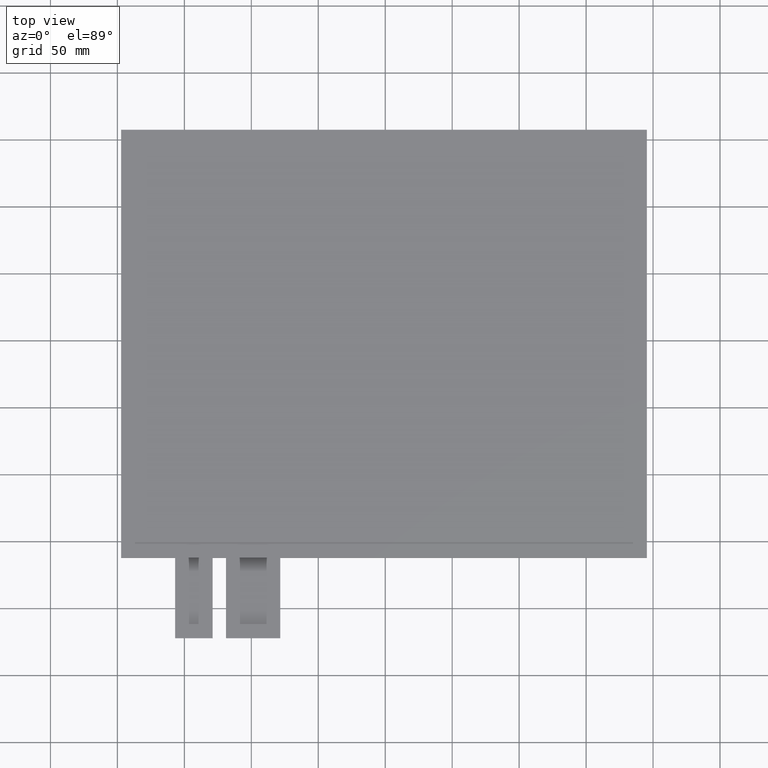
[diagram: clean part render]
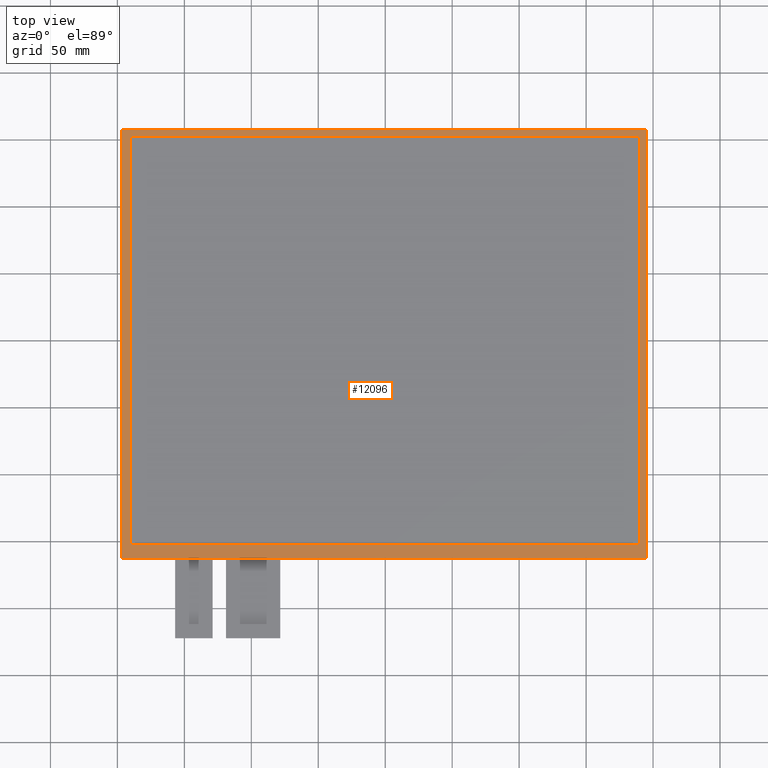
[diagram: same view with one face highlighted and labeled with its STEP entity id]
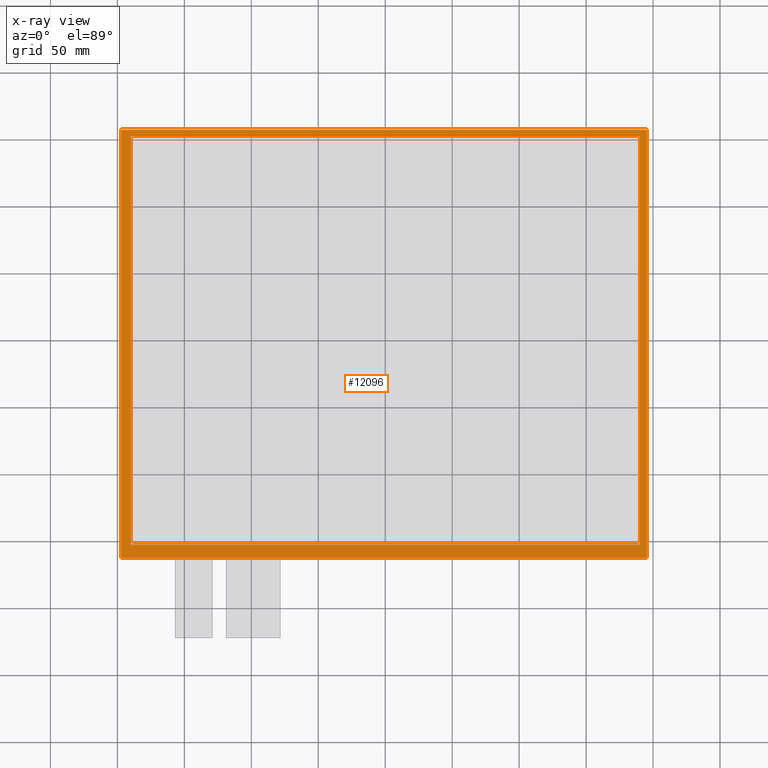
[diagram: x-ray of the same camera — body ghosted, the highlighted face saturated]
A machine part, top view. The second image highlights one B-rep face of the part: STEP entity #12096.
The next image is the same camera in x-ray: the body ghosted, the highlighted face saturated — about 0% of this face is hidden behind the body in this view.
In plain terms, the highlighted planar face has unit normal (0, 0, 1).
Its self-contained STEP definition (entity closure, byte-faithful):
#68=FACE_BOUND('',#1796,.T.);
#638=PLANE('',#12702);
#1216=FACE_OUTER_BOUND('',#1795,.T.);
#1795=EDGE_LOOP('',(#11481,#11482,#11483,#11484));
#1796=EDGE_LOOP('',(#11485,#11486,#11487,#11488));
#3489=LINE('',#18981,#5197);
#3493=LINE('',#18989,#5201);
#3496=LINE('',#18995,#5204);
#3499=LINE('',#19000,#5207);
#3501=LINE('',#19006,#5209);
#3502=LINE('',#19008,#5210);
#3503=LINE('',#19010,#5211);
#3504=LINE('',#19011,#5212);
#5197=VECTOR('',#15545,10.);
#5201=VECTOR('',#15551,10.);
#5204=VECTOR('',#15556,10.);
#5207=VECTOR('',#15561,10.);
#5209=VECTOR('',#15567,10.);
#5210=VECTOR('',#15568,10.);
#5211=VECTOR('',#15569,10.);
#5212=VECTOR('',#15570,10.);
#6357=VERTEX_POINT('',#18979);
#6358=VERTEX_POINT('',#18980);
#6361=VERTEX_POINT('',#18988);
#6363=VERTEX_POINT('',#18994);
#6365=VERTEX_POINT('',#19004);
#6366=VERTEX_POINT('',#19005);
#6367=VERTEX_POINT('',#19007);
#6368=VERTEX_POINT('',#19009);
#8065=EDGE_CURVE('',#6357,#6358,#3489,.T.);
#8069=EDGE_CURVE('',#6361,#6357,#3493,.T.);
#8072=EDGE_CURVE('',#6363,#6361,#3496,.T.);
#8075=EDGE_CURVE('',#6358,#6363,#3499,.T.);
#8077=EDGE_CURVE('',#6365,#6366,#3501,.T.);
#8078=EDGE_CURVE('',#6366,#6367,#3502,.T.);
#8079=EDGE_CURVE('',#6367,#6368,#3503,.T.);
#8080=EDGE_CURVE('',#6368,#6365,#3504,.T.);
#11481=ORIENTED_EDGE('',*,*,#8077,.T.);
#11482=ORIENTED_EDGE('',*,*,#8078,.T.);
#11483=ORIENTED_EDGE('',*,*,#8079,.T.);
#11484=ORIENTED_EDGE('',*,*,#8080,.T.);
#11485=ORIENTED_EDGE('',*,*,#8065,.T.);
#11486=ORIENTED_EDGE('',*,*,#8075,.T.);
#11487=ORIENTED_EDGE('',*,*,#8072,.T.);
#11488=ORIENTED_EDGE('',*,*,#8069,.T.);
#12096=ADVANCED_FACE('',(#1216,#68),#638,.T.);
#12702=AXIS2_PLACEMENT_3D('',#19003,#15565,#15566);
#15545=DIRECTION('',(-2.32964831396754E-16,1.,0.));
#15551=DIRECTION('',(-1.,-1.8683742723116E-16,0.));
#15556=DIRECTION('',(1.16482415698377E-16,-1.,0.));
#15561=DIRECTION('',(1.,0.,0.));
#15565=DIRECTION('center_axis',(0.,0.,1.));
#15566=DIRECTION('ref_axis',(1.,0.,0.));
#15567=DIRECTION('',(-1.,0.,0.));
#15568=DIRECTION('',(2.22183469593527E-16,-1.,0.));
#15569=DIRECTION('',(1.,0.,0.));
#15570=DIRECTION('',(-2.22183469593527E-16,1.,0.));
#18979=CARTESIAN_POINT('',(-190.15,-152.45,0.));
#18980=CARTESIAN_POINT('',(-190.15,152.55,0.));
#18981=CARTESIAN_POINT('',(-190.15,-77.4,0.));
#18988=CARTESIAN_POINT('',(190.15,-152.45,0.));
#18989=CARTESIAN_POINT('',(94.62,-152.45,0.));
#18994=CARTESIAN_POINT('',(190.15,152.55,0.));
#18995=CARTESIAN_POINT('',(190.15,75.1,0.));
#19000=CARTESIAN_POINT('',(-95.5300000000001,152.55,0.));
#19003=CARTESIAN_POINT('Origin',(-0.910000000000046,-2.35000000000003,0.));
#19004=CARTESIAN_POINT('',(195.34,157.55,0.));
#19005=CARTESIAN_POINT('',(-197.16,157.55,0.));
#19006=CARTESIAN_POINT('',(195.34,157.55,0.));
#19007=CARTESIAN_POINT('',(-197.16,-162.25,0.));
#19008=CARTESIAN_POINT('',(-197.16,157.55,0.));
#19009=CARTESIAN_POINT('',(195.34,-162.25,0.));
#19010=CARTESIAN_POINT('',(-197.16,-162.25,0.));
#19011=CARTESIAN_POINT('',(195.34,-162.25,0.));